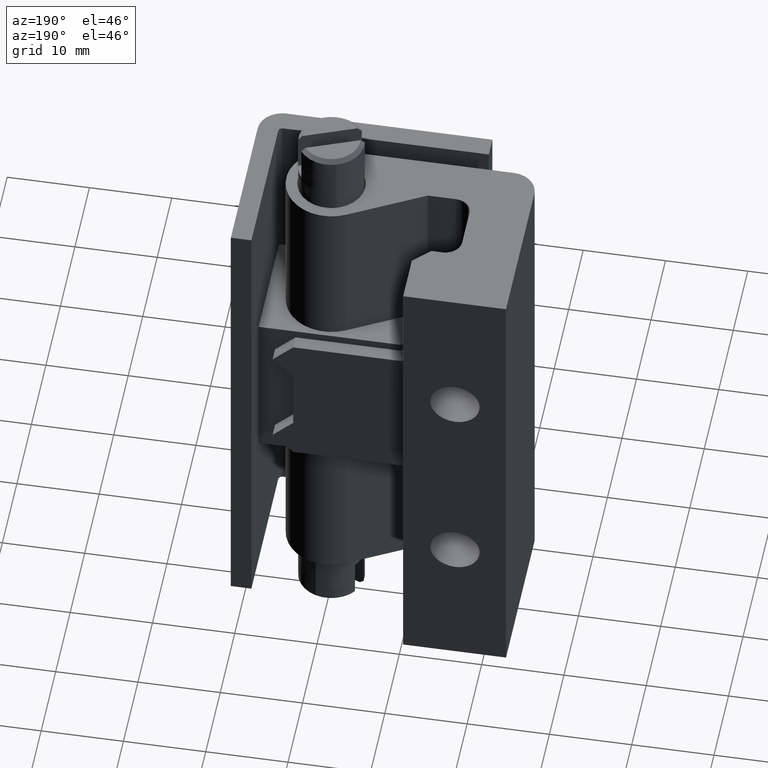
[diagram: clean part render]
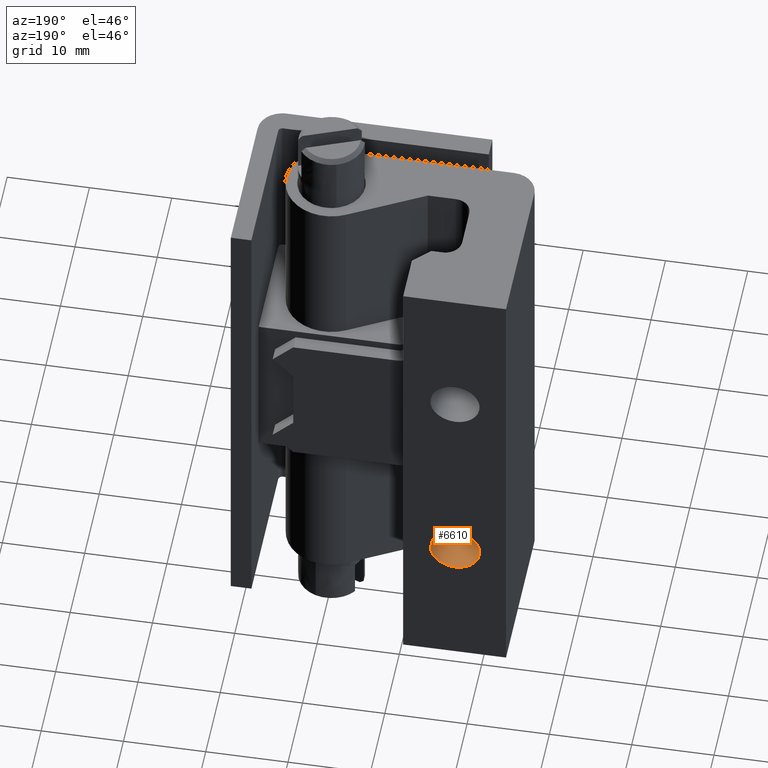
[diagram: same view with one face highlighted and labeled with its STEP entity id]
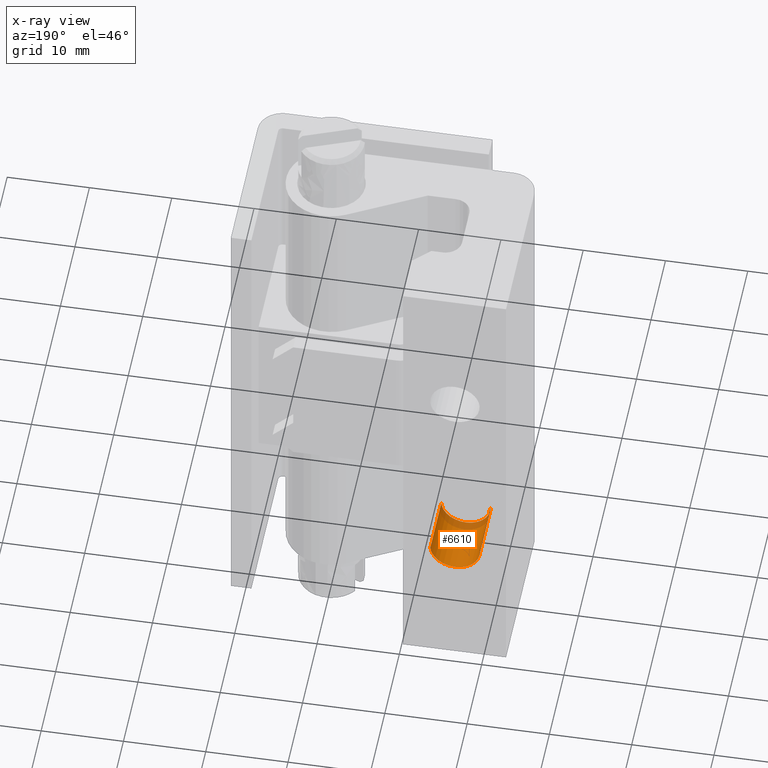
[diagram: x-ray of the same camera — body ghosted, the highlighted face saturated]
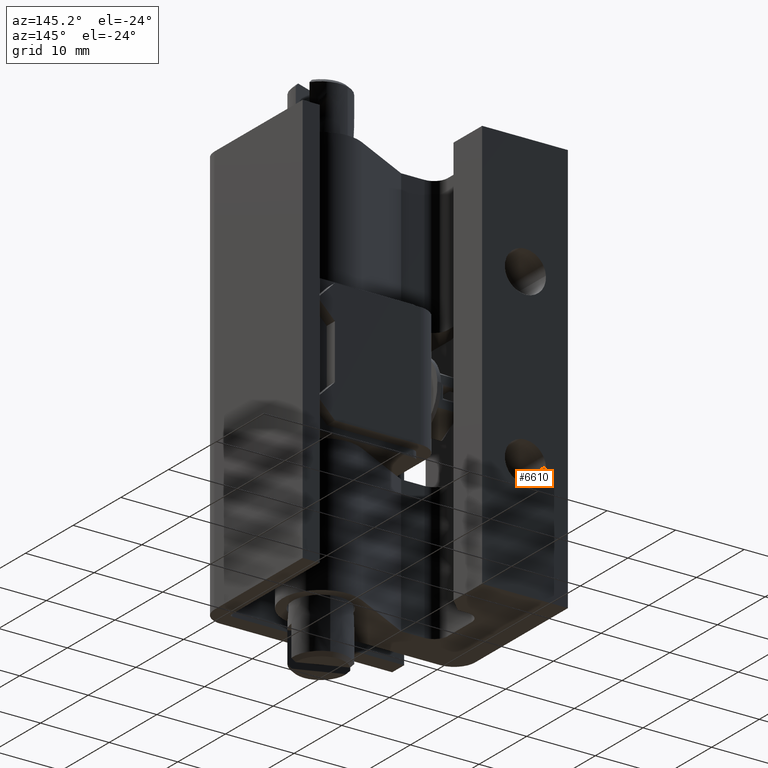
[diagram: same view with one face highlighted and labeled with its STEP entity id]
A machine part, auxiliary view. The second image highlights one B-rep face of the part: STEP entity #6610.
The next image is the same camera in x-ray: the body ghosted, the highlighted face saturated — about 16% of this face is hidden behind the body in this view.
A second angle (auxiliary view) of the same face is appended — the face is thin or edge-on in the first view.
In plain terms, the highlighted face is a freeform B-spline surface patch.
Its self-contained STEP definition (entity closure, byte-faithful):
#6445=CARTESIAN_POINT('',(-20.990754031382910,9.500000807456525,25.535372487171362));
#6446=VERTEX_POINT('',#6445);
#6460=CARTESIAN_POINT('',(-20.990754026399170,17.000000807456651,25.535372550498721));
#6461=VERTEX_POINT('',#6460);
#6462=CARTESIAN_POINT('',(-20.990754031382910,9.500000807456525,25.535372487171362));
#6463=CARTESIAN_POINT('',(-20.990754026399170,17.000000807456651,25.535372550498721));
#6464=QUASI_UNIFORM_CURVE('',1,(#6462,#6463),.UNSPECIFIED.,.F.,.U.);
#6465=EDGE_CURVE('',#6446,#6461,#6464,.T.);
#6482=CARTESIAN_POINT('',(-15.009249209387940,17.000000807456651,25.064628326993390));
#6483=VERTEX_POINT('',#6482);
#6499=CARTESIAN_POINT('',(-15.009249204404190,9.500000807456525,25.064628390320749));
#6500=VERTEX_POINT('',#6499);
#6501=CARTESIAN_POINT('',(-15.009249204404190,9.500000807456525,25.064628390320749));
#6502=CARTESIAN_POINT('',(-15.009249209387940,17.000000807456651,25.064628326993390));
#6503=QUASI_UNIFORM_CURVE('',1,(#6501,#6502),.UNSPECIFIED.,.F.,.U.);
#6504=EDGE_CURVE('',#6500,#6483,#6503,.T.);
#6524=CARTESIAN_POINT('',(-15.005939857448309,9.312500807456605,25.106677630167813));
#6525=CARTESIAN_POINT('',(-15.007589903599420,9.312500807456607,25.085711805947621));
#6526=CARTESIAN_POINT('',(-15.244626903877707,9.312500807456607,22.073871150363136));
#6527=CARTESIAN_POINT('',(-18.235378905077081,9.312500807456607,22.309248437546671));
#6528=CARTESIAN_POINT('',(-21.226130906276470,9.312500807456607,22.544625724730203));
#6529=CARTESIAN_POINT('',(-20.989094313415190,9.312500807456605,25.556461203590722));
#6530=CARTESIAN_POINT('',(-20.987444669942619,9.312500807456608,25.577421911295101));
#6531=CARTESIAN_POINT('',(-15.005939857448309,17.192188307456654,25.106677630167813));
#6532=CARTESIAN_POINT('',(-15.007589903599420,17.192188307456654,25.085711805947621));
#6533=CARTESIAN_POINT('',(-15.244626903877707,17.192188307456647,22.073871150363136));
#6534=CARTESIAN_POINT('',(-18.235378905077081,17.192188307456650,22.309248437546671));
#6535=CARTESIAN_POINT('',(-21.226130906276470,17.192188307456647,22.544625724730203));
#6536=CARTESIAN_POINT('',(-20.989094313415190,17.192188307456654,25.556461203590722));
#6537=CARTESIAN_POINT('',(-20.987444669942619,17.192188307456661,25.577421911295101));
#6545=(BOUNDED_SURFACE()B_SPLINE_SURFACE(2,1,((#6524,#6531),(#6525,#6532),(#6526,#6533),(#6527,#6534),(#6528,#6535),(#6529,#6536),(#6530,#6537)),.UNSPECIFIED.,.F.,.F.,.U.)B_SPLINE_SURFACE_WITH_KNOTS((3,1,2,1,3),(2,2),(0.0,0.049711783310716,5.020274531787854,9.990837280264993,10.040536824870159),(0.0,7.879687500000050),.UNSPECIFIED.)GEOMETRIC_REPRESENTATION_ITEM()RATIONAL_B_SPLINE_SURFACE(((1.005858589847314,1.005858589847314),(1.002929294923657,1.002929294923657),(0.707106781186548,0.707106781186548),(1.0,1.0),(0.707106781186548,0.707106781186548),(1.002928573751017,1.002928573751017),(1.005857147502033,1.005857147502033)))REPRESENTATION_ITEM('')SURFACE());
#6546=CARTESIAN_POINT('',(-18.000001617893549,9.500000807456610,22.300000438746050));
#6547=VERTEX_POINT('',#6546);
#6548=CARTESIAN_POINT('',(-20.990754031382917,9.500000807456525,25.535372487171362));
#6549=CARTESIAN_POINT('',(-21.000001617893549,9.500000807456610,25.417868128234691));
#6550=CARTESIAN_POINT('',(-21.000001617893549,9.500000807456610,25.300000438746050));
#6551=CARTESIAN_POINT('',(-21.000001617893552,9.500000807456610,22.300000438746054));
#6552=CARTESIAN_POINT('',(-18.000001617893549,9.500000807456610,22.300000438746050));
#6560=(BOUNDED_CURVE()B_SPLINE_CURVE(2,(#6548,#6549,#6550,#6551,#6552),.UNSPECIFIED.,.F.,.U.)B_SPLINE_CURVE_WITH_KNOTS((3,2,3),(0.236331600908960,0.250000000000000,0.500000000000000),.UNSPECIFIED.)CURVE()GEOMETRIC_REPRESENTATION_ITEM()RATIONAL_B_SPLINE_CURVE((0.969723982826167,0.983986474376793,1.0,0.707106781186548,1.0))REPRESENTATION_ITEM(''));
#6561=EDGE_CURVE('',#6446,#6547,#6560,.T.);
#6562=ORIENTED_EDGE('',*,*,#6561,.T.);
#6563=CARTESIAN_POINT('',(-18.000001617893549,9.500000807456610,22.300000438746050));
#6564=CARTESIAN_POINT('',(-15.226825270262134,9.500000807456610,22.300000438746061));
#6565=CARTESIAN_POINT('',(-15.009249204404188,9.500000807456525,25.064628390320745));
#6573=(BOUNDED_CURVE()B_SPLINE_CURVE(2,(#6563,#6564,#6565),.UNSPECIFIED.,.F.,.U.)B_SPLINE_CURVE_WITH_KNOTS((3,3),(0.500000000000000,0.736331600908960),.UNSPECIFIED.)CURVE()GEOMETRIC_REPRESENTATION_ITEM()RATIONAL_B_SPLINE_CURVE((1.0,0.723120306809754,0.969723982826168))REPRESENTATION_ITEM(''));
#6574=EDGE_CURVE('',#6547,#6500,#6573,.T.);
#6575=ORIENTED_EDGE('',*,*,#6574,.T.);
#6576=ORIENTED_EDGE('',*,*,#6504,.T.);
#6577=CARTESIAN_POINT('',(-18.000001617893549,17.000000807456651,22.300000438746050));
#6578=VERTEX_POINT('',#6577);
#6579=CARTESIAN_POINT('',(-18.000001617893549,17.000000807456651,22.300000438746050));
#6580=CARTESIAN_POINT('',(-15.226825329164024,17.000000807456647,22.300000438746050));
#6581=CARTESIAN_POINT('',(-15.009249209387939,17.000000807456651,25.064628326993383));
#6589=(BOUNDED_CURVE()B_SPLINE_CURVE(2,(#6579,#6580,#6581),.UNSPECIFIED.,.F.,.U.)B_SPLINE_CURVE_WITH_KNOTS((3,3),(0.500000000000000,0.736331597279149),.UNSPECIFIED.)CURVE()GEOMETRIC_REPRESENTATION_ITEM()RATIONAL_B_SPLINE_CURVE((1.0,0.723120311062342,0.969723975251009))REPRESENTATION_ITEM(''));
#6590=EDGE_CURVE('',#6578,#6483,#6589,.T.);
#6591=ORIENTED_EDGE('',*,*,#6590,.F.);
#6592=CARTESIAN_POINT('',(-20.990754026399173,17.000000807456651,25.535372550498721));
#6593=CARTESIAN_POINT('',(-21.000001617893549,17.000000807456654,25.417868160045295));
#6594=CARTESIAN_POINT('',(-21.000001617893549,17.000000807456651,25.300000438746050));
#6595=CARTESIAN_POINT('',(-21.000001617893552,17.000000807456647,22.300000438746054));
#6596=CARTESIAN_POINT('',(-18.000001617893549,17.000000807456651,22.300000438746050));
#6604=(BOUNDED_CURVE()B_SPLINE_CURVE(2,(#6592,#6593,#6594,#6595,#6596),.UNSPECIFIED.,.F.,.U.)B_SPLINE_CURVE_WITH_KNOTS((3,2,3),(0.236331597279149,0.250000000000000,0.500000000000000),.UNSPECIFIED.)CURVE()GEOMETRIC_REPRESENTATION_ITEM()RATIONAL_B_SPLINE_CURVE((0.969723975251009,0.983986470124206,1.0,0.707106781186548,1.0))REPRESENTATION_ITEM(''));
#6605=EDGE_CURVE('',#6461,#6578,#6604,.T.);
#6606=ORIENTED_EDGE('',*,*,#6605,.F.);
#6607=ORIENTED_EDGE('',*,*,#6465,.F.);
#6608=EDGE_LOOP('',(#6562,#6575,#6576,#6591,#6606,#6607));
#6609=FACE_OUTER_BOUND('',#6608,.T.);
#6610=ADVANCED_FACE('',(#6609),#6545,.F.);